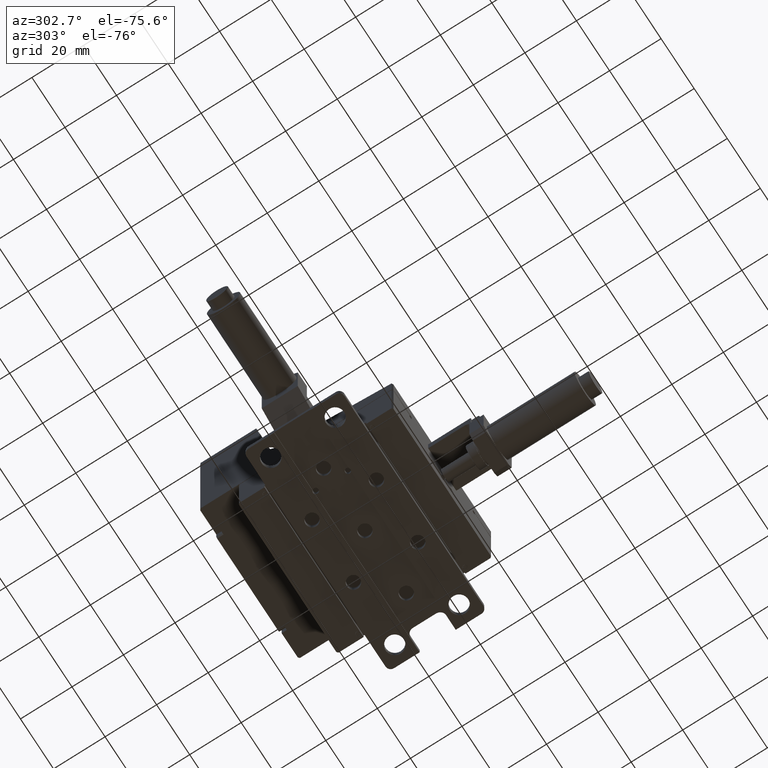
[diagram: clean part render]
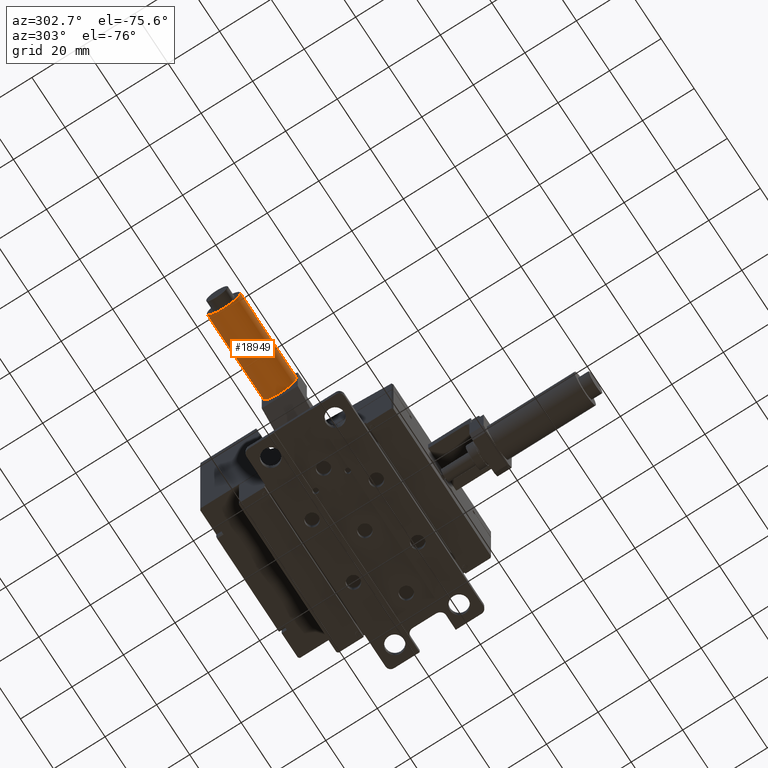
[diagram: same view with one face highlighted and labeled with its STEP entity id]
A machine part, auxiliary view. The second image highlights one B-rep face of the part: STEP entity #18949.
In plain terms, the highlighted cylindrical surface (edge-blend (fillet) strip) has radius 6.5 mm, axis along (-1, 0, 0).
Its self-contained STEP definition (entity closure, byte-faithful):
#1084 = DIRECTION ( 'NONE',  ( -1.000000000000000000, 1.067522139062650700E-015, 0.0000000000000000000 ) ) ;
#1290 = EDGE_LOOP ( 'NONE', ( #23008, #7199, #15706, #14188 ) ) ;
#2395 = DIRECTION ( 'NONE',  ( -2.135044278125299400E-015, -1.000000000000000000, 0.0000000000000000000 ) ) ;
#6341 = CARTESIAN_POINT ( 'NONE',  ( -63.20230440000000300, -68.38251310799999800, 15.87128608500000100 ) ) ;
#6697 = CARTESIAN_POINT ( 'NONE',  ( -63.20230440000001700, -74.88251310800001200, 15.87128608500000100 ) ) ;
#7199 = ORIENTED_EDGE ( 'NONE', *, *, #34531, .T. ) ;
#8802 = CARTESIAN_POINT ( 'NONE',  ( -63.20230439999999600, -61.88251310800000500, 15.87128608500000100 ) ) ;
#9013 = DIRECTION ( 'NONE',  ( -1.000000000000000000, 1.067522139062650700E-015, 0.0000000000000000000 ) ) ;
#10903 = CIRCLE ( 'NONE', #35859, 6.499999999999992000 ) ;
#11091 = DIRECTION ( 'NONE',  ( -1.000000000000000000, 1.067522139062650700E-015, 0.0000000000000000000 ) ) ;
#11148 = LINE ( 'NONE', #8802, #24968 ) ;
#11989 = CARTESIAN_POINT ( 'NONE',  ( -97.20230440000001700, -74.88251310799995500, 15.87128608500000100 ) ) ;
#14188 = ORIENTED_EDGE ( 'NONE', *, *, #20933, .F. ) ;
#15706 = ORIENTED_EDGE ( 'NONE', *, *, #30249, .T. ) ;
#16003 = CARTESIAN_POINT ( 'NONE',  ( -63.20230439999999600, -61.88251310800000500, 15.87128608500000100 ) ) ;
#17217 = AXIS2_PLACEMENT_3D ( 'NONE', #35603, #19046, #2395 ) ;
#18485 = CARTESIAN_POINT ( 'NONE',  ( -63.20230440000001700, -74.88251310800001200, 15.87128608500000100 ) ) ;
#18949 = ADVANCED_FACE ( 'NONE', ( #20685 ), #31063, .T. ) ;
#19046 = DIRECTION ( 'NONE',  ( -1.000000000000000000, 1.067522139062650700E-015, 0.0000000000000000000 ) ) ;
#20685 = FACE_OUTER_BOUND ( 'NONE', #1290, .T. ) ;
#20933 = EDGE_CURVE ( 'NONE', #23484, #21504, #10903, .T. ) ;
#21331 = CIRCLE ( 'NONE', #17217, 6.500000000000005300 ) ;
#21504 = VERTEX_POINT ( 'NONE', #11989 ) ;
#22986 = EDGE_CURVE ( 'NONE', #34487, #23484, #11148, .T. ) ;
#23008 = ORIENTED_EDGE ( 'NONE', *, *, #22986, .F. ) ;
#23484 = VERTEX_POINT ( 'NONE', #28378 ) ;
#23721 = VERTEX_POINT ( 'NONE', #18485 ) ;
#24968 = VECTOR ( 'NONE', #30991, 1000.000000000000000 ) ;
#25728 = DIRECTION ( 'NONE',  ( -2.135044278125299400E-015, -1.000000000000000000, 0.0000000000000000000 ) ) ;
#27246 = LINE ( 'NONE', #6697, #33762 ) ;
#27624 = CARTESIAN_POINT ( 'NONE',  ( -97.20230440000000300, -68.38251310799995500, 15.87128608500000100 ) ) ;
#28378 = CARTESIAN_POINT ( 'NONE',  ( -97.20230440000000300, -61.88251310799996200, 15.87128608500000100 ) ) ;
#30249 = EDGE_CURVE ( 'NONE', #23721, #21504, #27246, .T. ) ;
#30436 = DIRECTION ( 'NONE',  ( -2.135044278125303700E-015, -1.000000000000000000, 0.0000000000000000000 ) ) ;
#30991 = DIRECTION ( 'NONE',  ( -1.000000000000000000, 1.067522139062650700E-015, 0.0000000000000000000 ) ) ;
#31063 = CYLINDRICAL_SURFACE ( 'NONE', #35487, 6.500000000000005300 ) ;
#33762 = VECTOR ( 'NONE', #1084, 1000.000000000000000 ) ;
#34487 = VERTEX_POINT ( 'NONE', #16003 ) ;
#34531 = EDGE_CURVE ( 'NONE', #34487, #23721, #21331, .T. ) ;
#35487 = AXIS2_PLACEMENT_3D ( 'NONE', #6341, #9013, #25728 ) ;
#35603 = CARTESIAN_POINT ( 'NONE',  ( -63.20230440000000300, -68.38251310799999800, 15.87128608500000100 ) ) ;
#35859 = AXIS2_PLACEMENT_3D ( 'NONE', #27624, #11091, #30436 ) ;